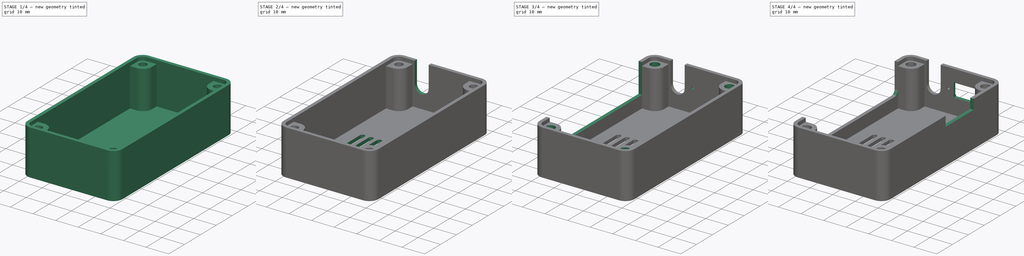
[diagram: build sequence overview — one tinted view per stage of 4, left to right]
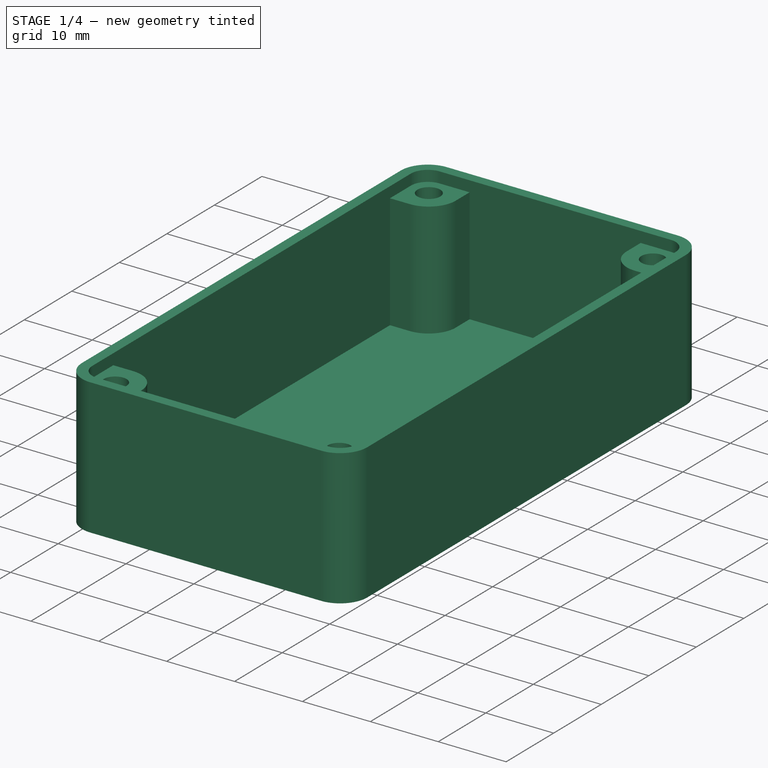
[diagram: stage 1 of 4 — iso view after this stage's code; geometry added in this stage tinted green]
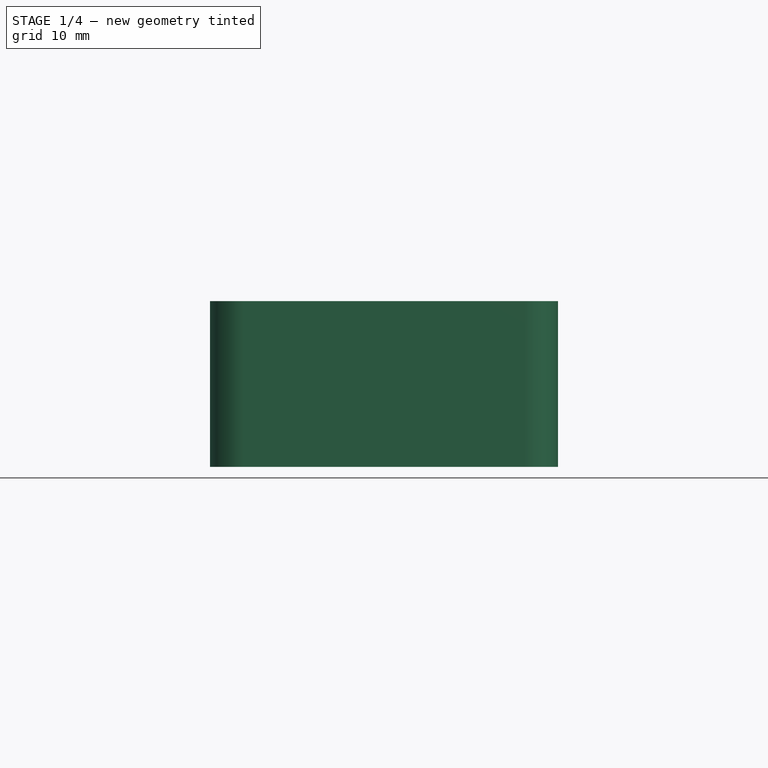
[diagram: stage 1 of 4 — front view after this stage's code; geometry added in this stage tinted green]
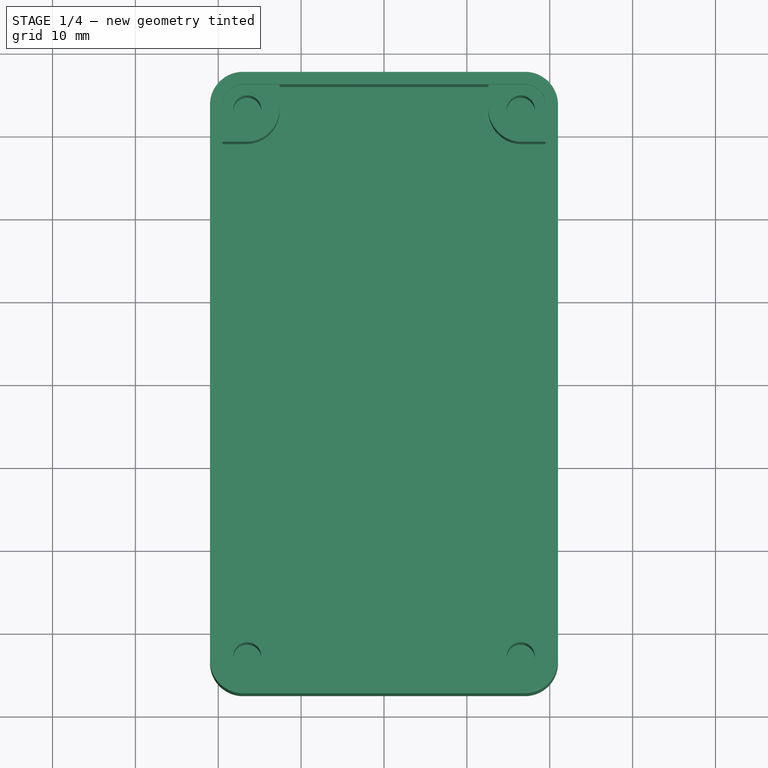
[diagram: stage 1 of 4 — top view after this stage's code; geometry added in this stage tinted green]
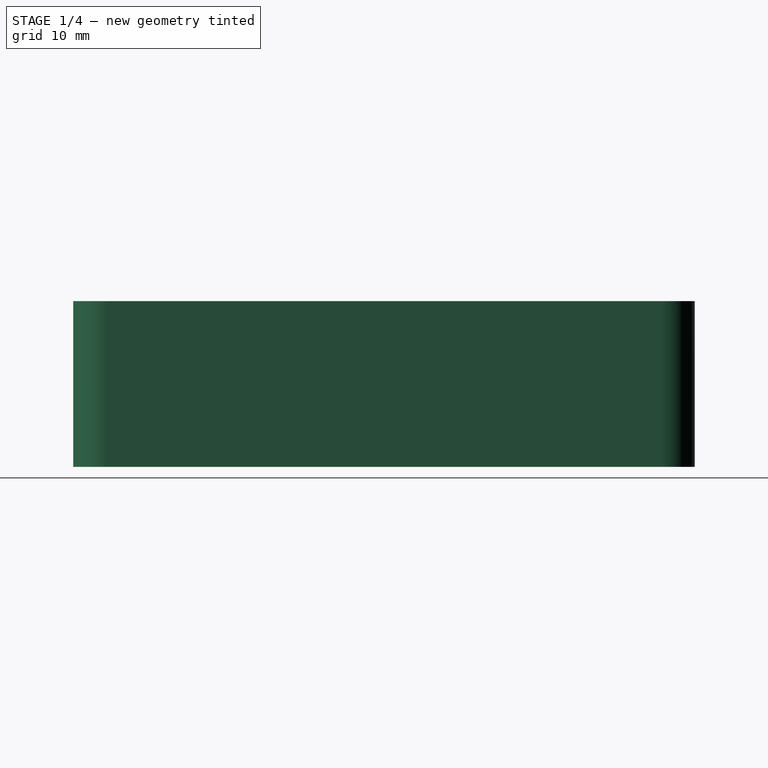
[diagram: stage 1 of 4 — right view after this stage's code; geometry added in this stage tinted green]
FCSTD DOCUMENT  (FreeCAD 0.18.4R)
Label: PH2.0
License: All rights reserved
LicenseURL: http://en.wikipedia.org/wiki/All_rights_reserved
objects: Sketcher::SketchObject×11, PartDesign::Pocket×10, PartDesign::Pad×1, PartDesign::LinearPattern×1, PartDesign::Fillet×1, PartDesign::Body×1
note: 36 computed .brp shape members not serialized (recipe doc carries the construction recipe); baked Part::Feature solids carry a one-line shape summary decoded from their .brp

FEATURE [Sketcher::SketchObject] Sketch
  MapMode = 5
  Support = -> [XY_Plane]
  sketch-geometry (8):
    g0: LineSegment StartX=-17 StartY=37.5 StartZ=0 EndX=17 EndY=37.5 EndZ=0
    g1: LineSegment StartX=21 StartY=33.5 StartZ=0 EndX=21 EndY=-33.5 EndZ=0
    g2: LineSegment StartX=17 StartY=-37.5 StartZ=0 EndX=-17 EndY=-37.5 EndZ=0
    g3: LineSegment StartX=-21 StartY=-33.5 StartZ=0 EndX=-21 EndY=33.5 EndZ=0
    g4: ArcOfCircle CenterX=-17 CenterY=33.5 CenterZ=0 NormalX=0 NormalY=0 NormalZ=1 AngleXU=0 Radius=4 StartAngle=1.5708 EndAngle=3.14159
    g5: ArcOfCircle CenterX=17 CenterY=33.5 CenterZ=0 NormalX=0 NormalY=0 NormalZ=1 AngleXU=0 Radius=4 StartAngle=7e-16 EndAngle=1.5708
    g6: ArcOfCircle CenterX=17 CenterY=-33.5 CenterZ=0 NormalX=0 NormalY=0 NormalZ=1 AngleXU=0 Radius=4 StartAngle=4.71239 EndAngle=6.28319
    g7: ArcOfCircle CenterX=-17 CenterY=-33.5 CenterZ=0 NormalX=0 NormalY=0 NormalZ=1 AngleXU=0 Radius=4 StartAngle=3.14159 EndAngle=4.71239
  constraints (19):
    c: Horizontal(g0)
    c: Horizontal(g2)
    c: Vertical(g1)
    c: Vertical(g3)
    c: Tangent(g3,g4) = 1.5708
    c: Tangent(g0,g4) = 1.5708
    c: Tangent(g0,g5) = 1.5708
    c: Tangent(g1,g5) = 1.5708
    c: Tangent(g1,g6) = 1.5708
    c: Tangent(g2,g6) = 1.5708
    c: Tangent(g3,g7) = 1.5708
    c: Tangent(g2,g7) = 1.5708
    c: Symmetric(g6,g4,g-1)
    c: Equal(g4,g5)
    c: Equal(g5,g6)
    c: Equal(g6,g7)
    c: DistanceX(g3,g1) = 42
    c: DistanceY(g2,g0) = 75
    c: Radius(g6) = 4
FEATURE [PartDesign::Pad] Pad
  Length = 20
  Length2 = 100
  Profile = -> Sketch
  Type = 0
FEATURE [Sketcher::SketchObject] Sketch001
  ExternalGeometry = -> [Pad]
  MapMode = 5
  Placement = pos=(0,0,20) rot=(0,0,1;0rad)
  Support = -> [Pad]
  sketch-geometry (20):
    g0: LineSegment StartX=-12.6 StartY=36 StartZ=0 EndX=12.6 EndY=36 EndZ=0
    g1: LineSegment StartX=12.6 StartY=36 StartZ=0 EndX=12.6 EndY=33.1 EndZ=0
    g2: LineSegment StartX=16.6 StartY=29.1 StartZ=0 EndX=19.5 EndY=29.1 EndZ=0
    g3: LineSegment StartX=19.5 StartY=29.1 StartZ=0 EndX=19.5 EndY=-29.1 EndZ=0
    g4: LineSegment StartX=19.5 StartY=-29.1 StartZ=0 EndX=16.6 EndY=-29.1 EndZ=0
    g5: LineSegment StartX=12.6 StartY=-33.1 StartZ=0 EndX=12.6 EndY=-36 EndZ=0
    g6: LineSegment StartX=12.6 StartY=-36 StartZ=0 EndX=-12.6 EndY=-36 EndZ=0
    g7: LineSegment StartX=-12.6 StartY=-36 StartZ=0 EndX=-12.6 EndY=-33.1 EndZ=0
    g8: LineSegment StartX=-16.6 StartY=-29.1 StartZ=0 EndX=-19.5 EndY=-29.1 EndZ=0
    g9: LineSegment StartX=-19.5 StartY=-29.1 StartZ=0 EndX=-19.5 EndY=29.1 EndZ=0
    g10: LineSegment StartX=-19.5 StartY=29.1 StartZ=0 EndX=-16.6 EndY=29.1 EndZ=0
    g11: LineSegment StartX=-12.6 StartY=33.1 StartZ=0 EndX=-12.6 EndY=36 EndZ=0
    g12: ArcOfCircle CenterX=-16.6 CenterY=33.1 CenterZ=0 NormalX=0 NormalY=0 NormalZ=1 AngleXU=0 Radius=4 StartAngle=4.71239 EndAngle=6.28319
    g13: ArcOfCircle CenterX=16.6 CenterY=33.1 CenterZ=0 NormalX=0 NormalY=0 NormalZ=1 AngleXU=0 Radius=4 StartAngle=3.14159 EndAngle=4.71239
    g14: ArcOfCircle CenterX=16.6 CenterY=-33.1 CenterZ=0 NormalX=0 NormalY=0 NormalZ=1 AngleXU=0 Radius=4 StartAngle=1.5708 EndAngle=3.14159
    g15: ArcOfCircle CenterX=-16.6 CenterY=-33.1 CenterZ=0 NormalX=0 NormalY=0 NormalZ=1 AngleXU=0 Radius=4 StartAngle=0 EndAngle=1.5708
    g16: Circle CenterX=-16.5 CenterY=-33 CenterZ=0 NormalX=0 NormalY=0 NormalZ=1 AngleXU=0 Radius=1.6891
    g17: Circle CenterX=16.5 CenterY=-33 CenterZ=0 NormalX=0 NormalY=0 NormalZ=1 AngleXU=0 Radius=1.6891
    g18: Circle CenterX=16.5 CenterY=33 CenterZ=0 NormalX=0 NormalY=0 NormalZ=1 AngleXU=0 Radius=1.6891
    g19: Circle CenterX=-16.5 CenterY=33 CenterZ=0 NormalX=0 NormalY=0 NormalZ=1 AngleXU=0 Radius=1.6891
  constraints (54):
    c: Horizontal(g0)
    c: Coincident(g0,g1)
    c: Horizontal(g2)
    c: Coincident(g2,g3)
    c: Coincident(g3,g4)
    c: Coincident(g5,g6)
    c: Horizontal(g6)
    c: Coincident(g6,g7)
    c: Coincident(g8,g9)
    c: Vertical(g9)
    c: Coincident(g9,g10)
    c: Horizontal(g10)
    c: Coincident(g11,g0)
    c: Equal(g0,g6)
    c: Equal(g3,g9)
    c: Vertical(g3)
    c: Vertical(g1)
    c: Vertical(g11)
    c: Horizontal(g4)
    c: Horizontal(g8)
    c: Vertical(g7)
    c: Tangent(g10,g12) = -1.5708
    c: Tangent(g11,g12) = -1.5708
    c: Tangent(g1,g13) = -1.5708
    c: Tangent(g2,g13) = -1.5708
    c: Tangent(g4,g14) = -1.5708
    c: Tangent(g5,g14) = -1.5708
    c: Tangent(g8,g15) = -1.5708
    c: Tangent(g7,g15) = -1.5708
    c: DistanceY(g-6,g5) = 1.5
    c: DistanceX(g3,g-4) = 1.5
    c: DistanceX(g-3,g8) = 1.5
    c: DistanceY(g0,g-5) = 1.5
    c: Equal(g11,g1)
    c: Vertical(g5)
    c: Equal(g15,g14)
    c: Equal(g14,g12)
    c: Equal(g12,g13)
    c: Equal(g10,g11)
    c: Radius(g12) = 4
    c: Equal(g5,g4)
    c: Equal(g8,g7)
    c: Equal(g2,g1)
    c: Equal(g19,g18)
    c: Equal(g18,g17)
    c: Equal(g17,g16)
    c: Radius(g18) = 1.6891
    c: Symmetric(g16,g19,g-1)
    c: Horizontal(g18,g19)
    c: Vertical(g17,g18)
    c: DistanceX(g16,g17) = 33
    c: Symmetric(g17,g16,g-2)
    c: DistanceY(g16,g19) = 66
    c: DistanceX(g1,g18) = 3.9
FEATURE [PartDesign::Pocket] Pocket
  BaseFeature = -> Pad
  Length = 18.5
  Length2 = 100
  Profile = -> Sketch001
  Type = 0
FEATURE [Sketcher::SketchObject] Sketch002
  MapMode = 5
  Placement = pos=(0,0,20) rot=(0,0,1;0rad)
  Support = -> [Pocket]
  sketch-geometry (8):
    g0: LineSegment StartX=-17 StartY=36 StartZ=0 EndX=17 EndY=36 EndZ=0
    g1: LineSegment StartX=19.5 StartY=33.5 StartZ=0 EndX=19.5 EndY=-33.5 EndZ=0
    g2: LineSegment StartX=17 StartY=-36 StartZ=0 EndX=-17 EndY=-36 EndZ=0
    g3: LineSegment StartX=-19.5 StartY=-33.5 StartZ=0 EndX=-19.5 EndY=33.5 EndZ=0
    g4: ArcOfCircle CenterX=-17 CenterY=33.5 CenterZ=0 NormalX=0 NormalY=0 NormalZ=1 AngleXU=0 Radius=2.5 StartAngle=1.5708 EndAngle=3.14159
    g5: ArcOfCircle CenterX=17 CenterY=33.5 CenterZ=0 NormalX=0 NormalY=0 NormalZ=1 AngleXU=0 Radius=2.5 StartAngle=8e-16 EndAngle=1.5708
    g6: ArcOfCircle CenterX=17 CenterY=-33.5 CenterZ=0 NormalX=0 NormalY=0 NormalZ=1 AngleXU=0 Radius=2.5 StartAngle=4.71239 EndAngle=6.28319
    g7: ArcOfCircle CenterX=-17 CenterY=-33.5 CenterZ=0 NormalX=0 NormalY=0 NormalZ=1 AngleXU=0 Radius=2.5 StartAngle=3.14159 EndAngle=4.71239
  constraints (19):
    c: Horizontal(g0)
    c: Horizontal(g2)
    c: Vertical(g1)
    c: Vertical(g3)
    c: Tangent(g3,g4) = 1.5708
    c: Tangent(g0,g4) = 1.5708
    c: Tangent(g0,g5) = 1.5708
    c: Tangent(g1,g5) = 1.5708
    c: Tangent(g1,g6) = 1.5708
    c: Tangent(g2,g6) = 1.5708
    c: Tangent(g2,g7) = 1.5708
    c: Tangent(g3,g7) = 1.5708
    c: Symmetric(g6,g4,g-1)
    c: Equal(g6,g7)
    c: Equal(g7,g4)
    c: Equal(g4,g5)
    c: Radius(g4) = 2.5
    c: DistanceX(g3,g1) = 39
    c: DistanceY(g2,g0) = 72
FEATURE [PartDesign::Pocket] Pocket001
  BaseFeature = -> Pocket
  Length = 1.6
  Length2 = 100
  Profile = -> Sketch002
  Type = 0
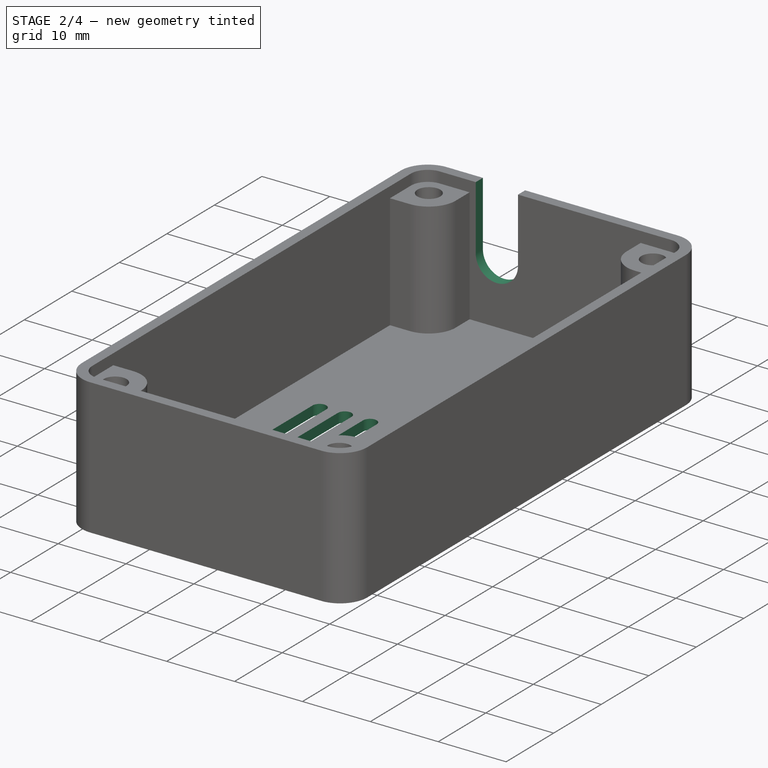
[diagram: stage 2 of 4 — iso view after this stage's code; geometry added in this stage tinted green]
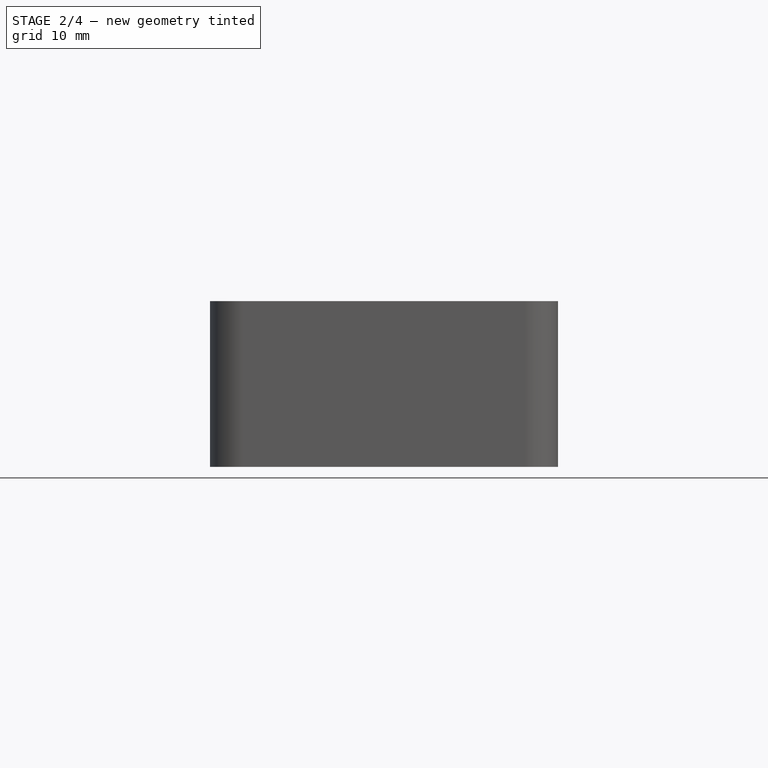
[diagram: stage 2 of 4 — front view after this stage's code; geometry added in this stage tinted green]
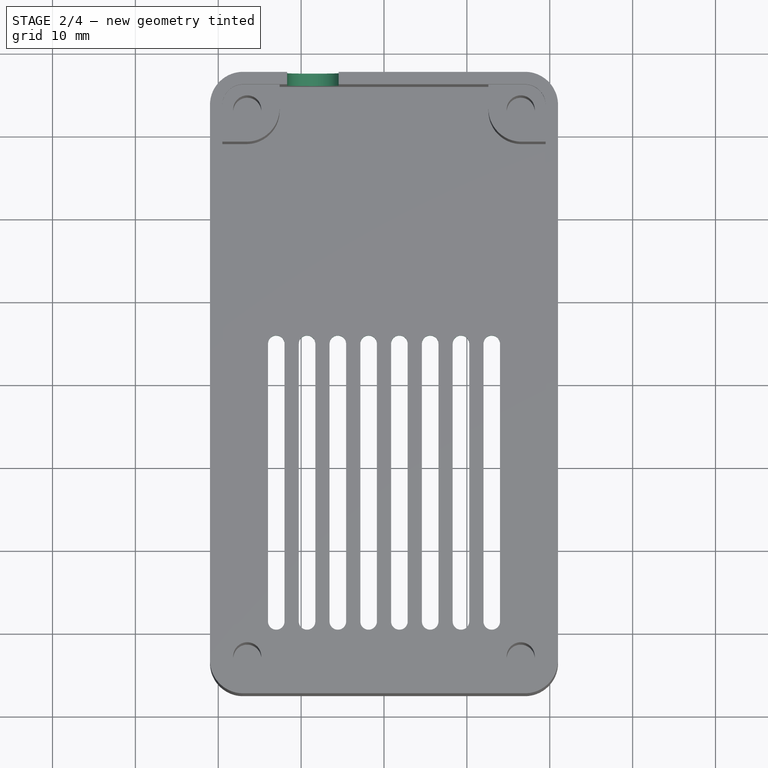
[diagram: stage 2 of 4 — top view after this stage's code; geometry added in this stage tinted green]
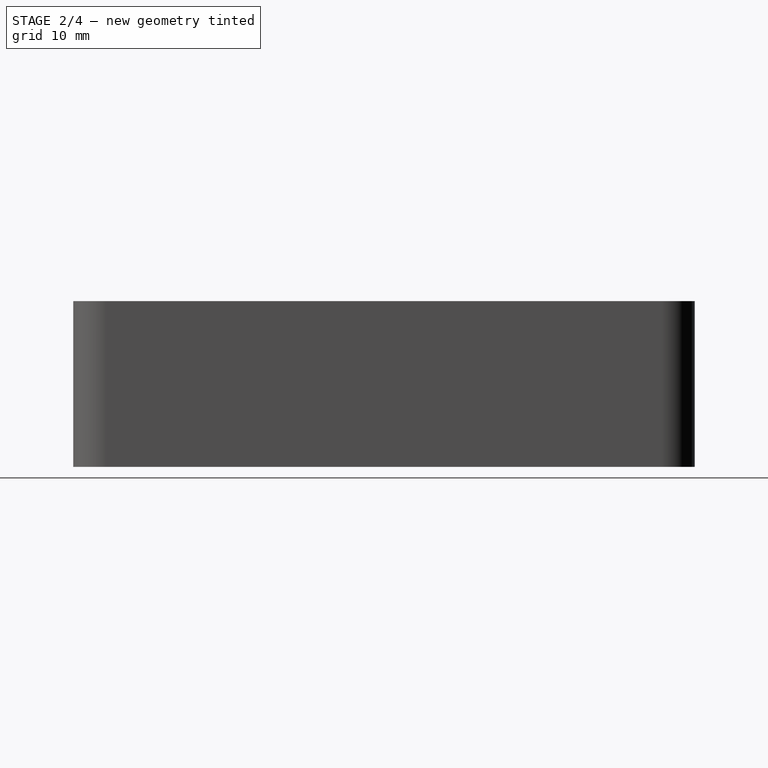
[diagram: stage 2 of 4 — right view after this stage's code; geometry added in this stage tinted green]
FEATURE [Sketcher::SketchObject] Sketch003
  ExternalGeometry = -> [Pocket001]
  MapMode = 5
  Placement = pos=(0,37.5,0) rot=(0,0.707107,0.707107;3.14159rad)
  Support = -> [Pocket001]
  sketch-geometry (4):
    g0: LineSegment StartX=5.4685 StartY=10.5 StartZ=0 EndX=5.4685 EndY=20 EndZ=0
    g1: LineSegment StartX=5.4685 StartY=20 StartZ=0 EndX=11.6915 EndY=20 EndZ=0
    g2: LineSegment StartX=11.6915 StartY=20 StartZ=0 EndX=11.6915 EndY=10.5 EndZ=0
    g3: ArcOfCircle CenterX=8.58 CenterY=10.5 CenterZ=0 NormalX=0 NormalY=0 NormalZ=1 AngleXU=0 Radius=3.1115 StartAngle=3.14159 EndAngle=6.28319
  constraints (13):
    c: Coincident(g0,g1)
    c: Coincident(g1,g2)
    c: Horizontal(g1)
    c: Vertical(g0)
    c: Vertical(g2)
    c: DistanceX(g1,g1) = 6.223
    c: DistanceY(g0,g0) = 9.5
    c: Coincident(g3,g0)
    c: Coincident(g3,g2)
    c: Horizontal(g2,g3)
    c: Horizontal(g0,g3)
    c: PointOnObject(g1,g-4)
    c: DistanceX(g3,g-3) = 12.42
FEATURE [PartDesign::Pocket] Pocket002
  BaseFeature = -> Pocket001
  Length = 5
  Length2 = 100
  Profile = -> Sketch003
  Type = 0
FEATURE [Sketcher::SketchObject] Sketch005
  MapMode = 5
  Placement = pos=(0,0,0) rot=(1,0,0;3.14159rad)
  sketch-geometry (4):
    g0: ArcOfCircle CenterX=-13 CenterY=-5 CenterZ=0 NormalX=0 NormalY=0 NormalZ=1 AngleXU=0 Radius=1 StartAngle=3.14159 EndAngle=6.28319
    g1: ArcOfCircle CenterX=-13 CenterY=28.5 CenterZ=0 NormalX=0 NormalY=0 NormalZ=1 AngleXU=0 Radius=1 StartAngle=-9e-16 EndAngle=3.14159
    g2: LineSegment StartX=-12 StartY=-5 StartZ=0 EndX=-12 EndY=28.5 EndZ=0
    g3: LineSegment StartX=-14 StartY=-5 StartZ=0 EndX=-14 EndY=28.5 EndZ=0
  constraints (8):
    c: Tangent(g0,g3) = 1.5708
    c: Tangent(g0,g2) = -1.5708
    c: Tangent(g2,g1) = -1.5708
    c: Tangent(g3,g1) = 1.5708
    c: Vertical(g2)
    c: Equal(g0,g1)
    c: Radius(g1) = 1
    c: DistanceY(g0,g-1) = 5
FEATURE [PartDesign::Pocket] Pocket004
  BaseFeature = -> Pocket002
  Length = 5
  Length2 = 100
  Profile = -> Sketch005
  Type = 0
FEATURE [PartDesign::LinearPattern] LinearPattern
  BaseFeature = -> Pocket004
  Direction = -> Sketch005 [H_Axis]
  Length = 26
  Occurrences = 8
  Originals = -> [Pocket004]
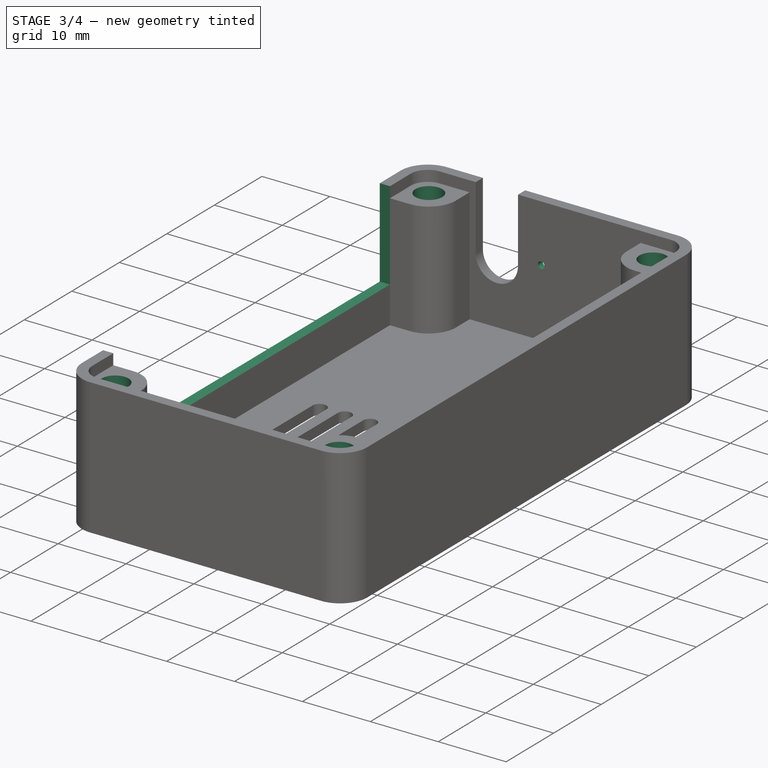
[diagram: stage 3 of 4 — iso view after this stage's code; geometry added in this stage tinted green]
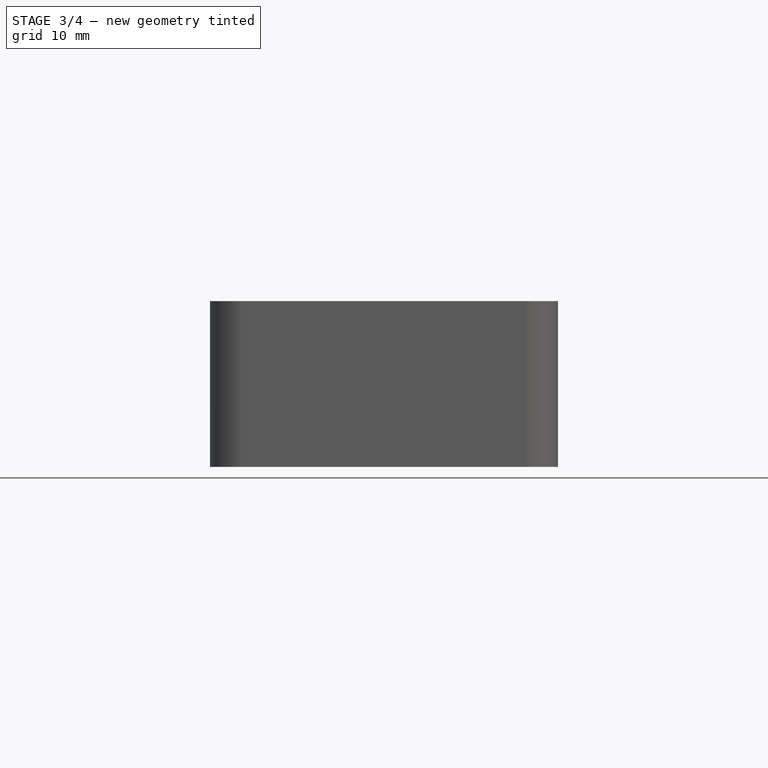
[diagram: stage 3 of 4 — front view after this stage's code; geometry added in this stage tinted green]
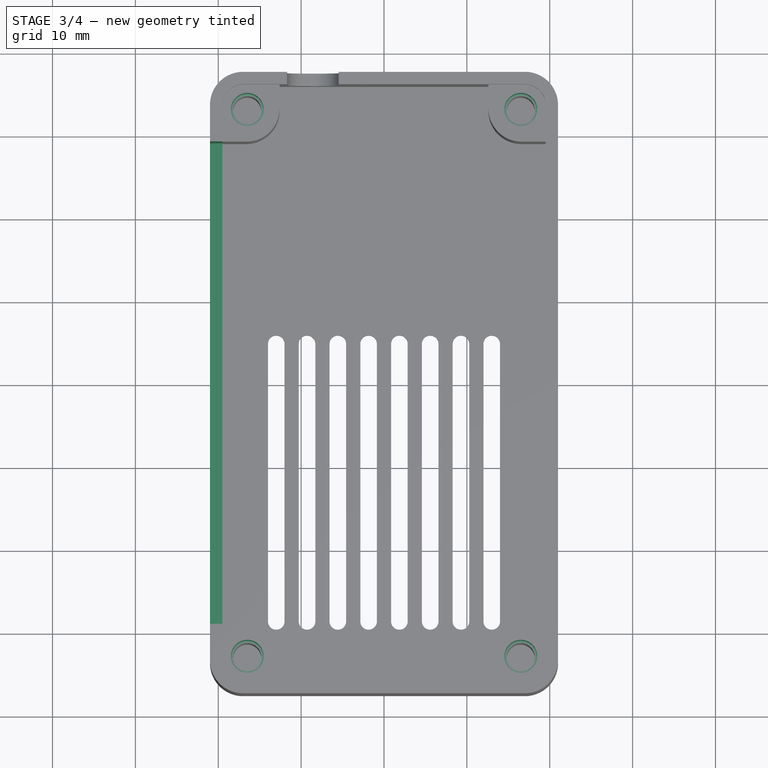
[diagram: stage 3 of 4 — top view after this stage's code; geometry added in this stage tinted green]
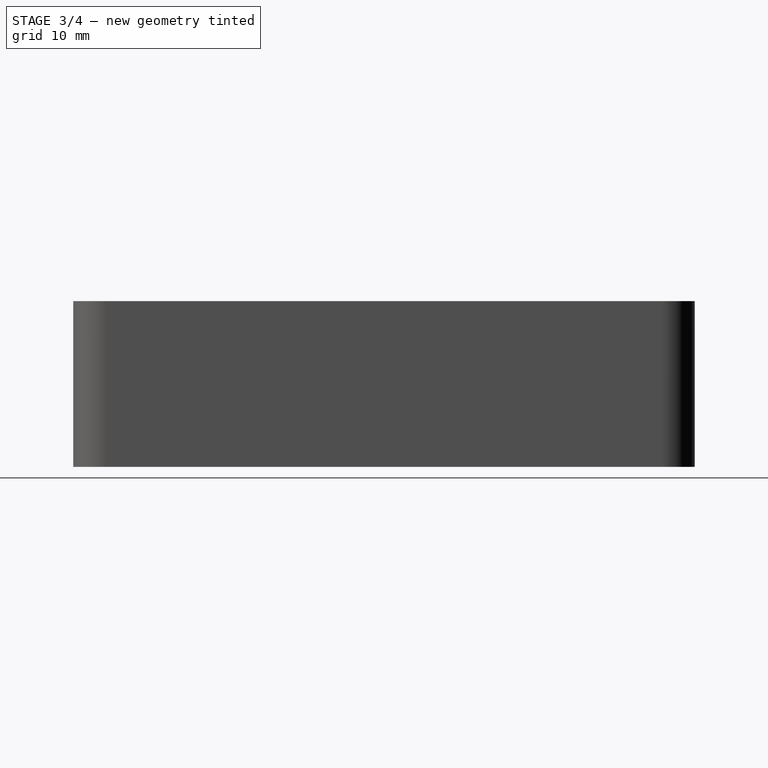
[diagram: stage 3 of 4 — right view after this stage's code; geometry added in this stage tinted green]
FEATURE [Sketcher::SketchObject] Sketch006
  ExternalGeometry = -> [LinearPattern]
  MapMode = 5
  Placement = pos=(-21,0,0) rot=(0.57735,-0.57735,-0.57735;2.0944rad)
  Support = -> [LinearPattern]
  sketch-geometry (4):
    g0: LineSegment StartX=-29.1 StartY=6.9088 StartZ=0 EndX=29.1 EndY=6.9088 EndZ=0
    g1: LineSegment StartX=29.1 StartY=6.9088 StartZ=0 EndX=29.1 EndY=20 EndZ=0
    g2: LineSegment StartX=29.1 StartY=20 StartZ=0 EndX=-29.1 EndY=20 EndZ=0
    g3: LineSegment StartX=-29.1 StartY=20 StartZ=0 EndX=-29.1 EndY=6.9088 EndZ=0
  constraints (8):
    c: Coincident(g0,g1)
    c: Coincident(g1,g2)
    c: Coincident(g2,g3)
    c: Coincident(g3,g0)
    c: Horizontal(g0)
    c: Horizontal(g2)
    c: Vertical(g1)
    c: Vertical(g3)
FEATURE [PartDesign::Pocket] Pocket005
  BaseFeature = -> LinearPattern
  Length = 5
  Length2 = 100
  Profile = -> Sketch006
  Type = 0
FEATURE [Sketcher::SketchObject] Sketch009
  MapMode = 5
  Placement = pos=(0,37.5,0) rot=(0,0.707107,0.707107;3.14159rad)
  sketch-geometry (4):
    g0: LineSegment StartX=-15.6 StartY=13.9088 StartZ=0 EndX=4.4 EndY=13.9088 EndZ=0
    g1: LineSegment StartX=4.4 StartY=13.9088 StartZ=0 EndX=4.4 EndY=9.1088 EndZ=0
    g2: LineSegment StartX=4.4 StartY=9.1088 StartZ=0 EndX=-15.6 EndY=9.1088 EndZ=0
    g3: LineSegment StartX=-15.6 StartY=9.1088 StartZ=0 EndX=-15.6 EndY=13.9088 EndZ=0
  constraints (11):
    c: Coincident(g0,g1)
    c: Coincident(g1,g2)
    c: Coincident(g2,g3)
    c: Coincident(g3,g0)
    c: Horizontal(g0)
    c: Horizontal(g2)
    c: Vertical(g1)
    c: Vertical(g3)
    c: DistanceX(g2,g2) = 20
    c: DistanceY(g3,g3) = 4.8
    c: DistanceX(g-1,g1) = 4.4
FEATURE [PartDesign::Pocket] Pocket007
  BaseFeature = -> Pocket005
  Length = 0.5
  Length2 = 100
  Profile = -> Sketch009
  Type = 0
FEATURE [Sketcher::SketchObject] Sketch010
  MapMode = 5
  Placement = pos=(0,0,18.4) rot=(0,0,1;0rad)
  sketch-geometry (4):
    g0: Circle CenterX=-16.5 CenterY=33 CenterZ=0 NormalX=0 NormalY=0 NormalZ=1 AngleXU=0 Radius=1.98
    g1: Circle CenterX=16.5 CenterY=33 CenterZ=0 NormalX=0 NormalY=0 NormalZ=1 AngleXU=0 Radius=1.98
    g2: Circle CenterX=-16.5 CenterY=-33 CenterZ=0 NormalX=0 NormalY=0 NormalZ=1 AngleXU=0 Radius=1.98
    g3: Circle CenterX=16.5 CenterY=-33 CenterZ=0 NormalX=0 NormalY=0 NormalZ=1 AngleXU=0 Radius=1.98
  constraints (4):
    c: Equal(g3,g2)
    c: Equal(g2,g0)
    c: Equal(g0,g1)
    c: Radius(g1) = 1.98
FEATURE [PartDesign::Pocket] Pocket011
  BaseFeature = -> Pocket007
  Length = 5
  Length2 = 100
  Profile = -> Sketch010
  Type = 0
FEATURE [Sketcher::SketchObject] Sketch012
  MapMode = 5
  Placement = pos=(0,37,0) rot=(0,0.707107,0.707107;3.14159rad)
  sketch-geometry (2):
    g0: Circle CenterX=-13.25 CenterY=11.5088 CenterZ=0 NormalX=0 NormalY=0 NormalZ=1 AngleXU=0 Radius=0.5
    g1: Circle CenterX=2.05 CenterY=11.5088 CenterZ=0 NormalX=0 NormalY=0 NormalZ=1 AngleXU=0 Radius=0.5
  constraints (2):
    c: Equal(g1,g0)
    c: Radius(g0) = 0.5
FEATURE [PartDesign::Pocket] Pocket013
  BaseFeature = -> Pocket011
  Length = 2
  Length2 = 100
  Profile = -> Sketch012
  Type = 0
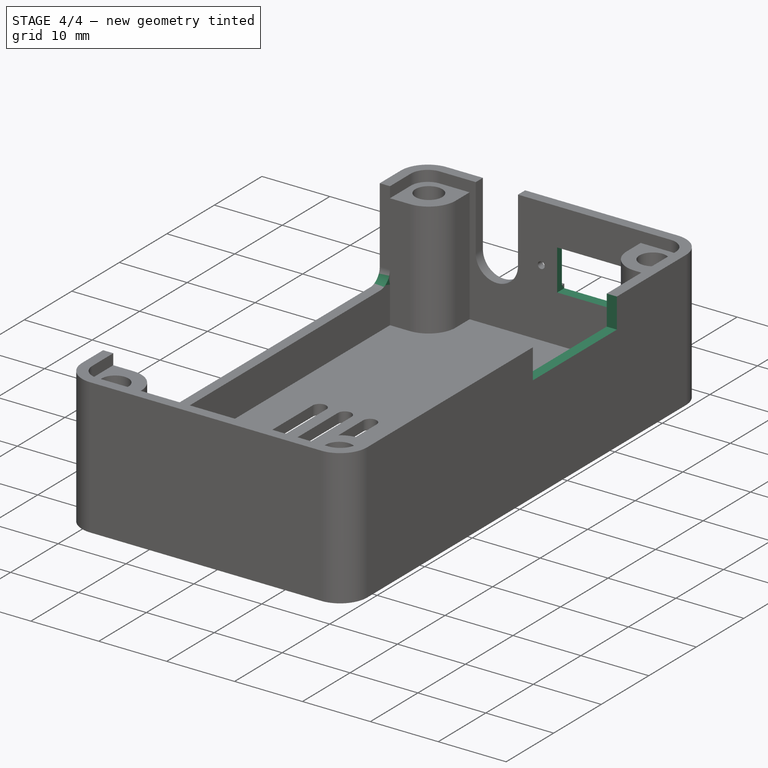
[diagram: stage 4 of 4 — iso view after this stage's code; geometry added in this stage tinted green]
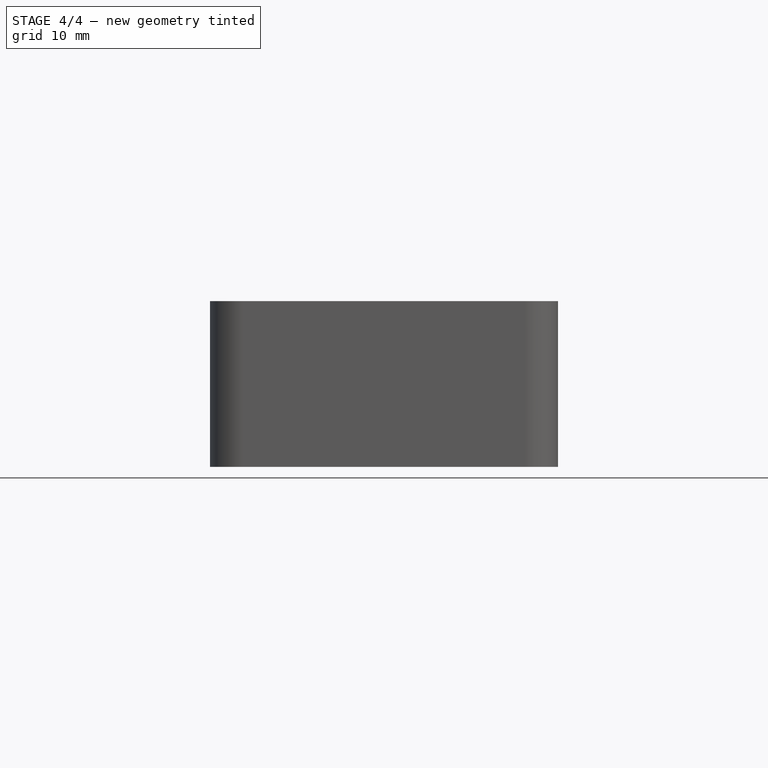
[diagram: stage 4 of 4 — front view after this stage's code; geometry added in this stage tinted green]
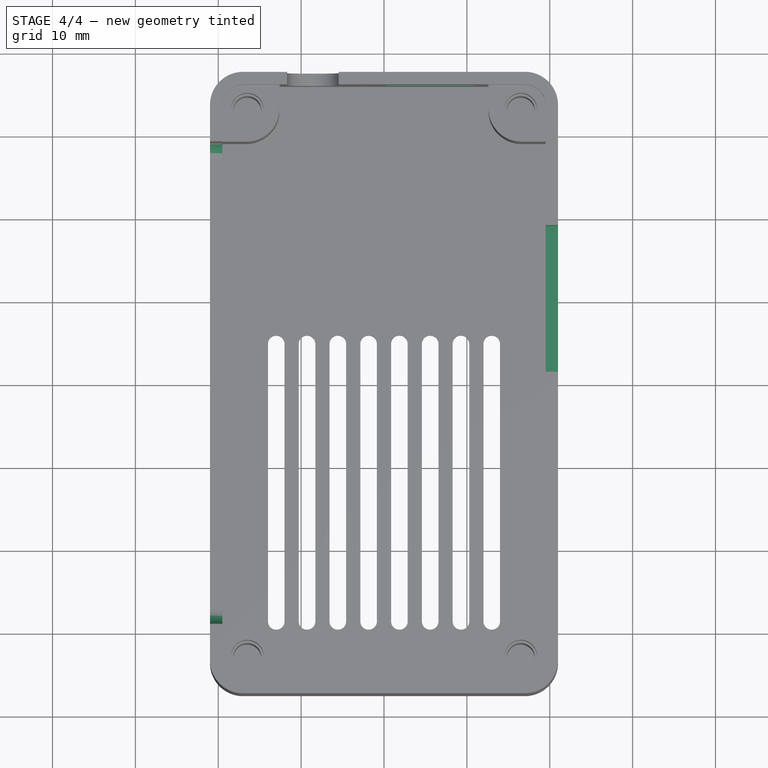
[diagram: stage 4 of 4 — top view after this stage's code; geometry added in this stage tinted green]
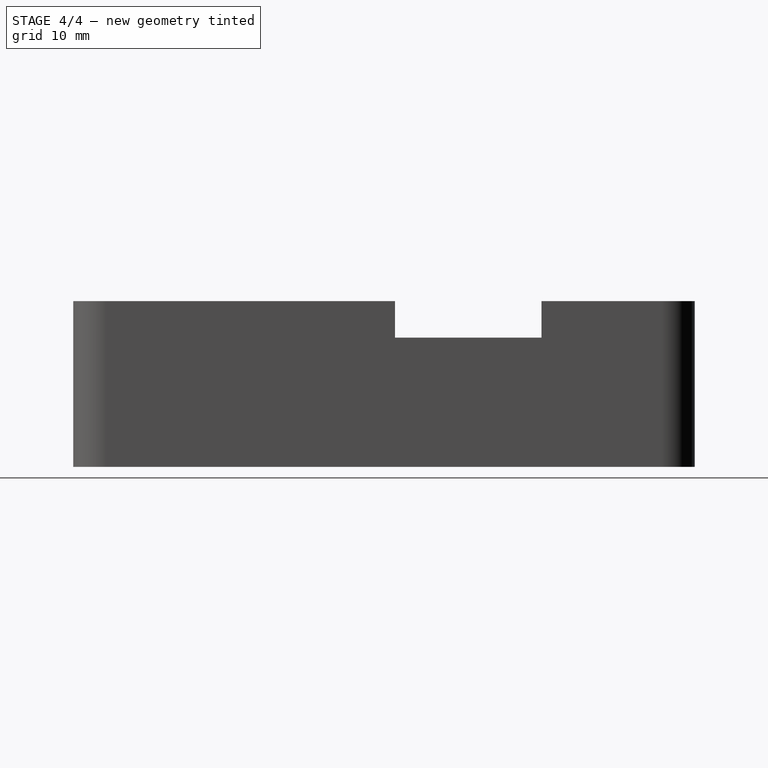
[diagram: stage 4 of 4 — right view after this stage's code; geometry added in this stage tinted green]
FEATURE [Sketcher::SketchObject] Sketch013
  ExternalGeometry = -> [Pocket013]
  MapMode = 5
  Placement = pos=(0,37.5,0) rot=(0,0.707107,0.707107;3.14159rad)
  Support = -> [Pocket013]
  sketch-geometry (4):
    g0: LineSegment StartX=-10.9 StartY=14.5088 StartZ=0 EndX=-0.3 EndY=14.5088 EndZ=0
    g1: LineSegment StartX=-0.3 StartY=14.5088 StartZ=0 EndX=-0.3 EndY=8.5088 EndZ=0
    g2: LineSegment StartX=-0.3 StartY=8.5088 StartZ=0 EndX=-10.9 EndY=8.5088 EndZ=0
    g3: LineSegment StartX=-10.9 StartY=8.5088 StartZ=0 EndX=-10.9 EndY=14.5088 EndZ=0
  constraints (12):
    c: Coincident(g0,g1)
    c: Coincident(g1,g2)
    c: Coincident(g2,g3)
    c: Coincident(g3,g0)
    c: Horizontal(g0)
    c: Horizontal(g2)
    c: Vertical(g1)
    c: Vertical(g3)
    c: DistanceX(g0,g0) = 10.6
    c: DistanceY(g1,g1) = 6
    c: DistanceX(g1,g-3) = 4.7
    c: DistanceY(g-3,g0) = 0.6
FEATURE [PartDesign::Pocket] Pocket014
  BaseFeature = -> Pocket013
  Length = 5
  Length2 = 100
  Profile = -> Sketch013
  Type = 0
FEATURE [Sketcher::SketchObject] Sketch004
  ExternalGeometry = -> [Pocket002]
  MapMode = 5
  Placement = pos=(21,0,0) rot=(0.57735,0.57735,0.57735;2.0944rad)
  Support = -> [Pocket014]
  sketch-geometry (4):
    g0: LineSegment StartX=1.32 StartY=20 StartZ=0 EndX=19 EndY=20 EndZ=0
    g1: LineSegment StartX=19 StartY=20 StartZ=0 EndX=19 EndY=15.6 EndZ=0
    g2: LineSegment StartX=19 StartY=15.6 StartZ=0 EndX=1.32 EndY=15.6 EndZ=0
    g3: LineSegment StartX=1.32 StartY=15.6 StartZ=0 EndX=1.32 EndY=20 EndZ=0
  constraints (12):
    c: Coincident(g2,g3)
    c: Coincident(g0,g3)
    c: Coincident(g1,g2)
    c: Coincident(g0,g1)
    c: PointOnObject(g0,g-3)
    c: DistanceX(g2,g2) = 17.68
    c: DistanceY(g3,g3) = 4.4
    c: Horizontal(g2)
    c: Horizontal(g0)
    c: Vertical(g1)
    c: Vertical(g3)
    c: DistanceX(g1,g-5) = 18.5
FEATURE [PartDesign::Pocket] Pocket015
  BaseFeature = -> Pocket014
  Length = 5
  Length2 = 100
  Profile = -> Sketch004
  Type = 0
FEATURE [PartDesign::Fillet] Fillet
  Base = -> Pocket015 [Edge57,Edge60]
  BaseFeature = -> Pocket015
  Radius = 2
FEATURE [PartDesign::Body] Body
  Group = -> [Sketch,Pad,Sketch001,Pocket,Sketch002,Pocket001,Sketch003,Pocket002,Sketch004,Sketch005,Pocket004,LinearPattern,Sketch006,Pocket005,Sketch009,Pocket007,Sketch010,Pocket011,Sketch012,Pocket013,Sketch013,Pocket014,Pocket015,Fillet]
  Origin = -> Origin
  Tip = -> Fillet
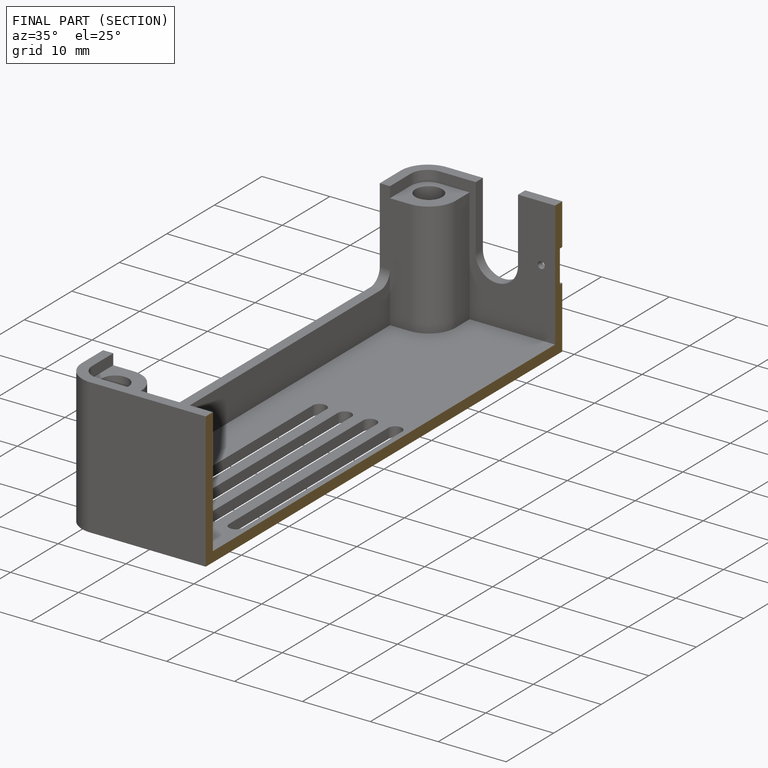
[diagram: finished part — half-section view (interior)]
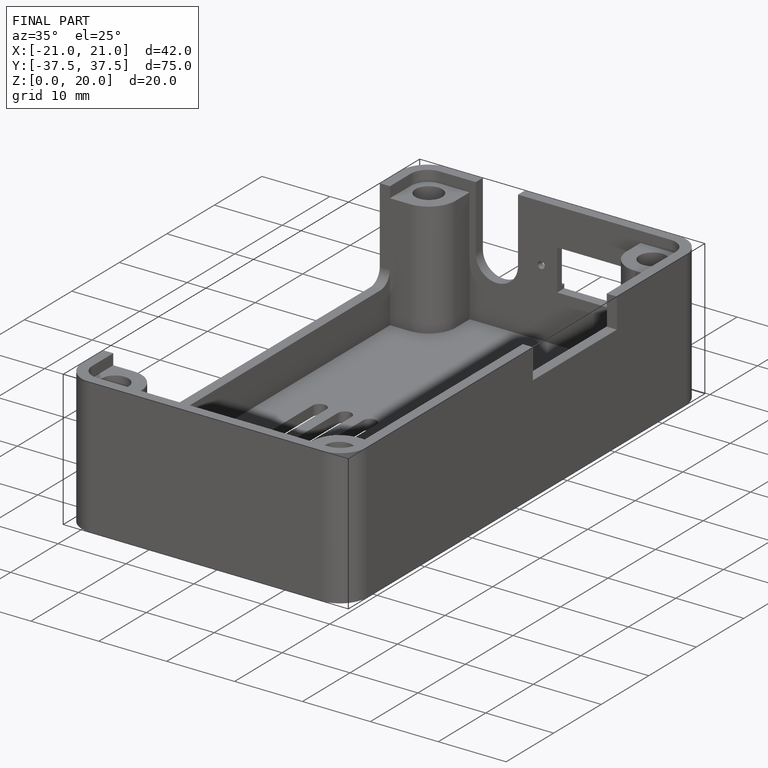
[diagram: finished part — iso view with bounding-box wireframe]
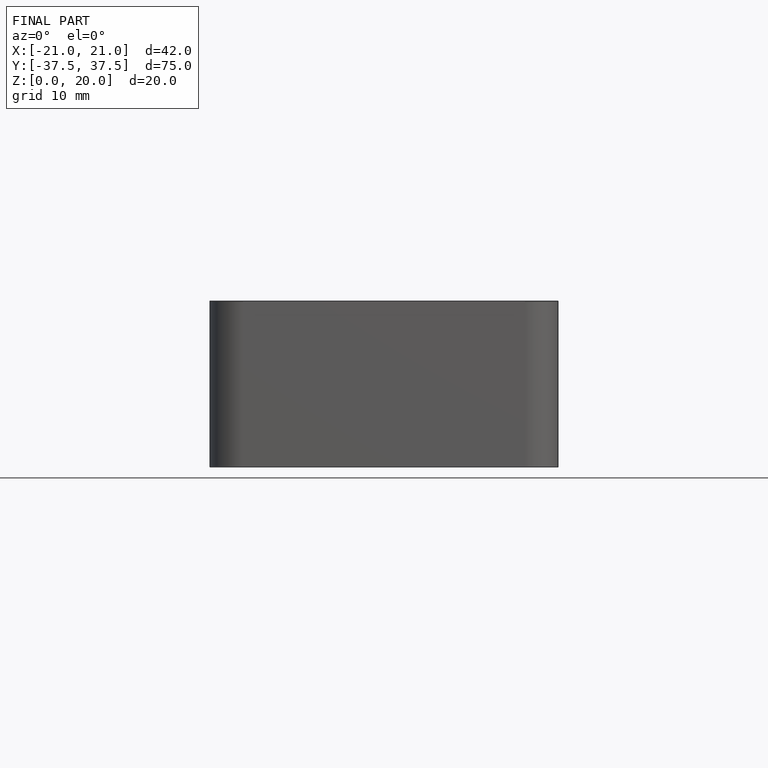
[diagram: finished part — front view with bounding-box wireframe]
